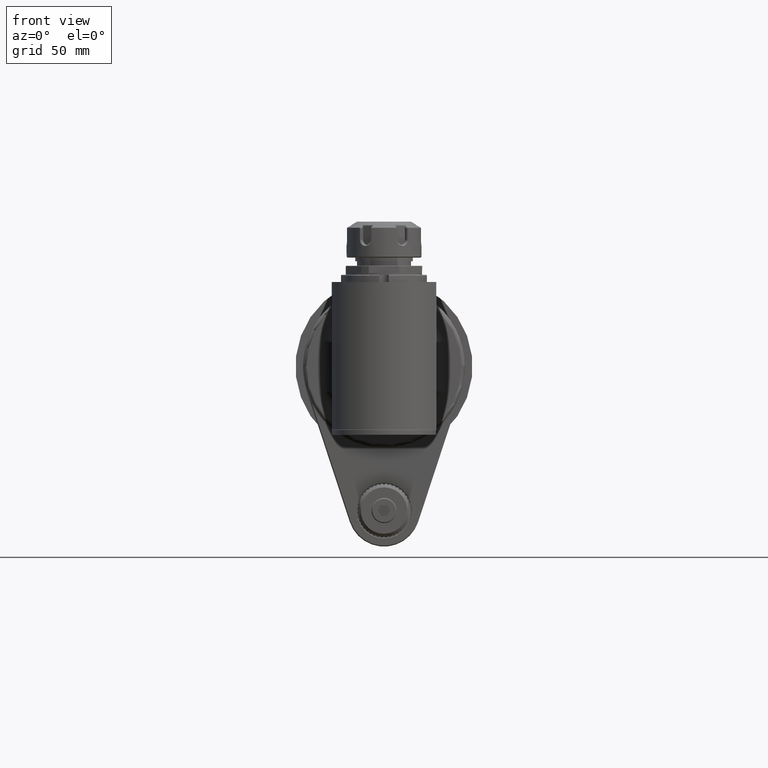
[diagram: clean part render]
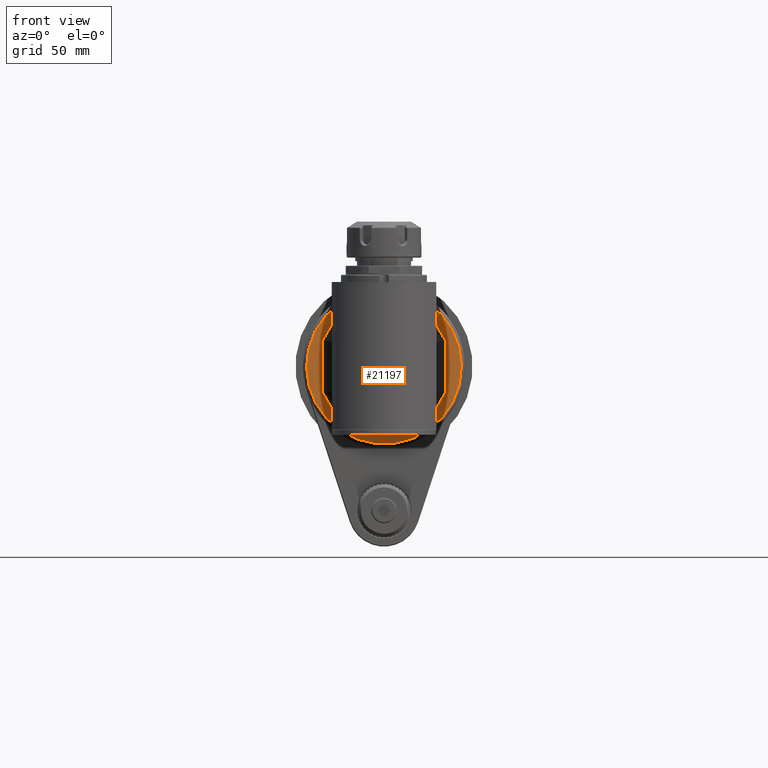
[diagram: same view with one face highlighted and labeled with its STEP entity id]
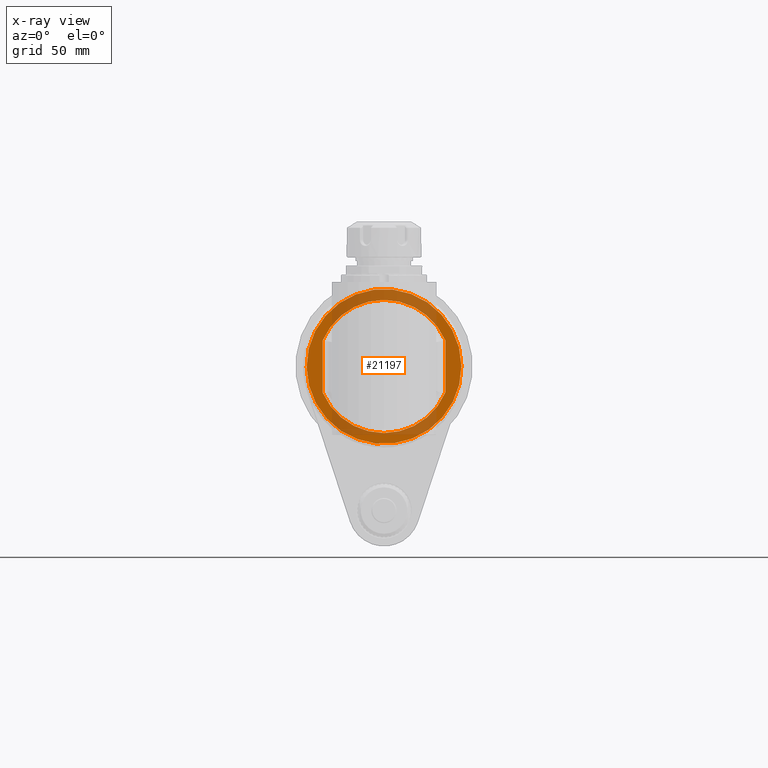
[diagram: x-ray of the same camera — body ghosted, the highlighted face saturated]
A machine part, front view. The second image highlights one B-rep face of the part: STEP entity #21197.
The next image is the same camera in x-ray: the body ghosted, the highlighted face saturated — about 41% of this face is hidden behind the body in this view.
In plain terms, the highlighted planar face has unit normal (0, -1, -0).
Its self-contained STEP definition (entity closure, byte-faithful):
#278=FACE_BOUND('',#2878,.T.);
#481=PLANE('',#22588);
#1624=FACE_OUTER_BOUND('',#2877,.T.);
#2877=EDGE_LOOP('',(#15339));
#2878=EDGE_LOOP('',(#15340,#15341,#15342,#15343));
#4234=CIRCLE('',#22586,1.45669291338583);
#4235=CIRCLE('',#22589,1.69291338582677);
#4236=CIRCLE('',#22590,1.45669291338583);
#5249=LINE('',#32416,#7372);
#5250=LINE('',#32521,#7373);
#7372=VECTOR('',#25221,1.1492479283252);
#7373=VECTOR('',#25226,1.14914163251378);
#9505=VERTEX_POINT('',#32211);
#9506=VERTEX_POINT('',#32312);
#9507=VERTEX_POINT('',#32415);
#9508=VERTEX_POINT('',#32518);
#9509=VERTEX_POINT('',#32520);
#11751=EDGE_CURVE('',#9506,#9505,#4234,.T.);
#11753=EDGE_CURVE('',#9506,#9507,#5249,.T.);
#11755=EDGE_CURVE('',#9508,#9508,#4235,.T.);
#11756=EDGE_CURVE('',#9509,#9505,#5250,.T.);
#11757=EDGE_CURVE('',#9509,#9507,#4236,.T.);
#15339=ORIENTED_EDGE('',*,*,#11755,.F.);
#15340=ORIENTED_EDGE('',*,*,#11756,.F.);
#15341=ORIENTED_EDGE('',*,*,#11757,.T.);
#15342=ORIENTED_EDGE('',*,*,#11753,.F.);
#15343=ORIENTED_EDGE('',*,*,#11751,.T.);
#21197=ADVANCED_FACE('',(#1624,#278),#481,.T.);
#22586=AXIS2_PLACEMENT_3D('',#32313,#25217,#25218);
#22588=AXIS2_PLACEMENT_3D('',#32517,#25222,#25223);
#22589=AXIS2_PLACEMENT_3D('',#32519,#25224,#25225);
#22590=AXIS2_PLACEMENT_3D('',#32522,#25227,#25228);
#25217=DIRECTION('center_axis',(0.,1.,0.));
#25218=DIRECTION('ref_axis',(-0.918891212425589,0.,0.394511013441995));
#25221=DIRECTION('',(0.,0.,-1.));
#25222=DIRECTION('center_axis',(0.,-1.,0.));
#25223=DIRECTION('ref_axis',(-1.,0.,0.));
#25224=DIRECTION('center_axis',(0.,1.,0.));
#25225=DIRECTION('ref_axis',(-1.,0.,0.));
#25226=DIRECTION('',(0.,0.,1.));
#25227=DIRECTION('center_axis',(0.,1.,0.));
#25228=DIRECTION('ref_axis',(0.918931285790724,0.,-0.39441766187001));
#32211=CARTESIAN_POINT('',(1.33858267716533,-1.45669291338583,0.574587382650772));
#32312=CARTESIAN_POINT('',(-1.33858267716533,-1.45669291338583,0.574587382650772));
#32313=CARTESIAN_POINT('Origin',(0.,-1.45669291338583,0.));
#32415=CARTESIAN_POINT('',(-1.33858267716533,-1.45669291338583,-0.574587382650772));
#32416=CARTESIAN_POINT('',(-1.33858267716535,-1.45669291338583,0.574624496894094));
#32517=CARTESIAN_POINT('Origin',(0.,-1.45669291338583,0.));
#32518=CARTESIAN_POINT('',(1.69285769238852,-1.45669291338583,0.0137319056386927));
#32519=CARTESIAN_POINT('Origin',(0.,-1.45669291338583,0.));
#32520=CARTESIAN_POINT('',(1.33858267716533,-1.45669291338583,-0.574587382650771));
#32521=CARTESIAN_POINT('',(1.33858267716535,-1.45669291338583,-0.574570815364961));
#32522=CARTESIAN_POINT('Origin',(0.,-1.45669291338583,0.));